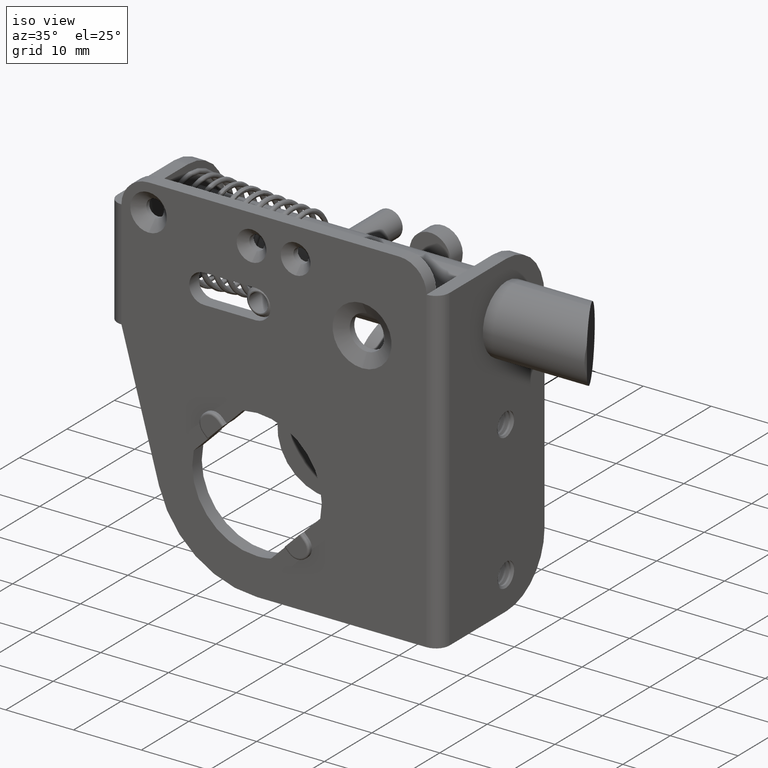
[diagram: clean part render]
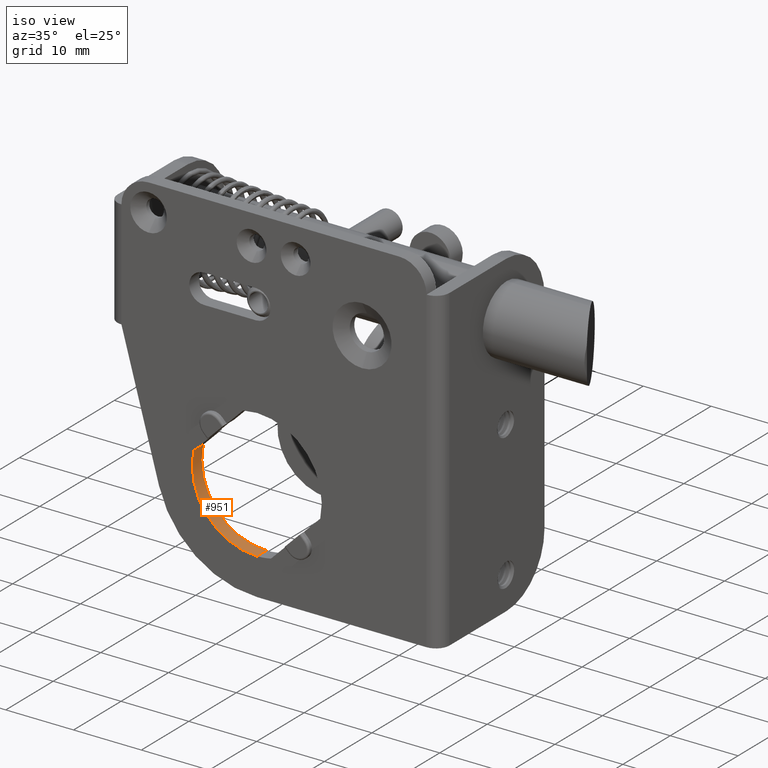
[diagram: same view with one face highlighted and labeled with its STEP entity id]
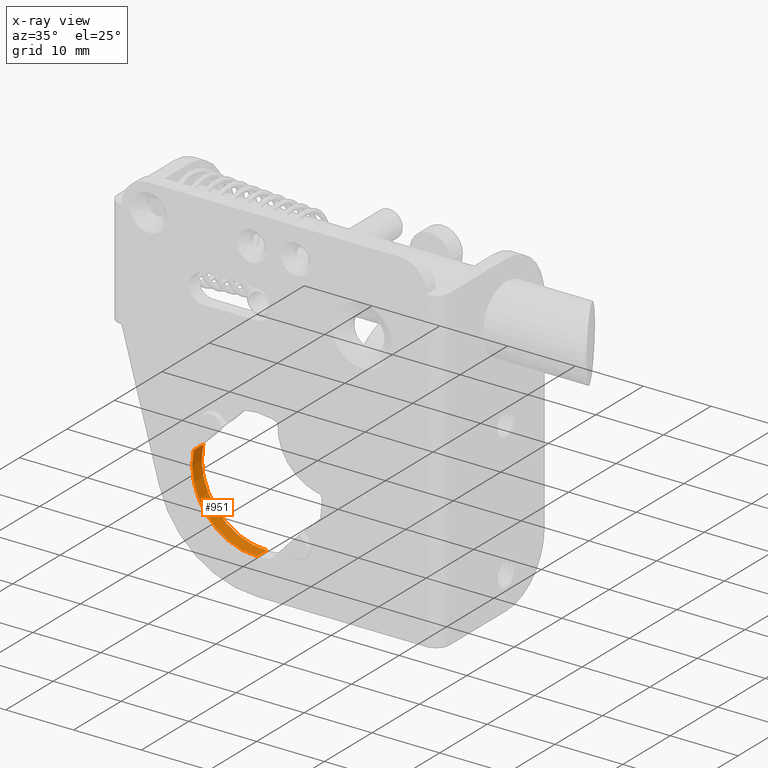
[diagram: x-ray of the same camera — body ghosted, the highlighted face saturated]
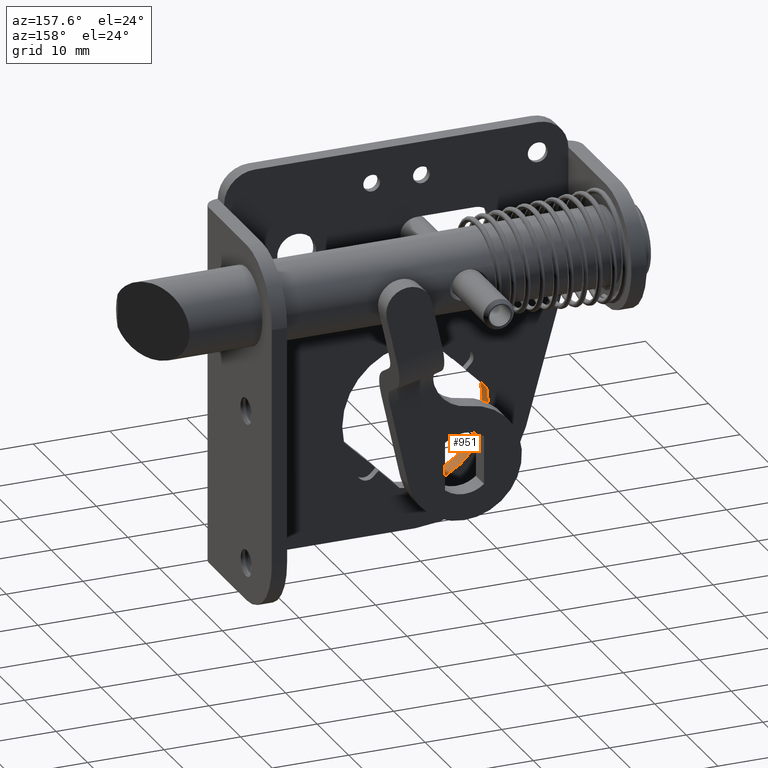
[diagram: same view with one face highlighted and labeled with its STEP entity id]
A machine part, iso view. The second image highlights one B-rep face of the part: STEP entity #951.
The next image is the same camera in x-ray: the body ghosted, the highlighted face saturated — about 0% of this face is hidden behind the body in this view.
A second angle (auxiliary view) of the same face is appended — the face is thin or edge-on in the first view.
In plain terms, the highlighted cylindrical surface (partial cylindrical patch) has radius 9.55 mm, axis along (-0, -1, 0).
Its self-contained STEP definition (entity closure, byte-faithful):
#280 = ORIENTED_EDGE ( 'NONE', *, *, #4961, .T. ) ;
#362 = VERTEX_POINT ( 'NONE', #3570 ) ;
#716 = CIRCLE ( 'NONE', #6069, 9.549999999999998900 ) ;
#870 = DIRECTION ( 'NONE',  ( -0.0000000000000000000, -1.000000000000000000, -0.0000000000000000000 ) ) ;
#951 = ADVANCED_FACE ( 'NONE', ( #13084 ), #9843, .F. ) ;
#1459 = CARTESIAN_POINT ( 'NONE',  ( -10.32460998623849900, 12.00000000000411900, -28.69097083647894700 ) ) ;
#1580 = CARTESIAN_POINT ( 'NONE',  ( -19.64999999971034900, -200986.0000000000000, -30.75000000009939800 ) ) ;
#2039 = VECTOR ( 'NONE', #8466, 1000.000000000000000 ) ;
#2533 = DIRECTION ( 'NONE',  ( -0.0000000000000000000, -1.000000000000000000, -0.0000000000000000000 ) ) ;
#2597 = CARTESIAN_POINT ( 'NONE',  ( -19.64999999971034900, 14.00000000001368000, -40.30000000009939500 ) ) ;
#3511 = VERTEX_POINT ( 'NONE', #1459 ) ;
#3570 = CARTESIAN_POINT ( 'NONE',  ( -10.32460998623849900, 14.00000000001368000, -28.69097083647890000 ) ) ;
#4056 = CARTESIAN_POINT ( 'NONE',  ( -19.64999999971034900, 12.00000000000411900, -40.30000000009939500 ) ) ;
#4525 = CIRCLE ( 'NONE', #8810, 9.549999999999998900 ) ;
#4961 = EDGE_CURVE ( 'NONE', #3511, #362, #5338, .T. ) ;
#5338 = LINE ( 'NONE', #13121, #8207 ) ;
#5657 = ORIENTED_EDGE ( 'NONE', *, *, #14288, .F. ) ;
#5678 = LINE ( 'NONE', #9693, #2039 ) ;
#6069 = AXIS2_PLACEMENT_3D ( 'NONE', #8212, #870, #9435 ) ;
#6205 = EDGE_CURVE ( 'NONE', #13746, #7428, #5678, .T. ) ;
#6499 = EDGE_CURVE ( 'NONE', #13746, #3511, #4525, .T. ) ;
#7428 = VERTEX_POINT ( 'NONE', #2597 ) ;
#7603 = ORIENTED_EDGE ( 'NONE', *, *, #6499, .T. ) ;
#8207 = VECTOR ( 'NONE', #14366, 1000.000000000000000 ) ;
#8212 = CARTESIAN_POINT ( 'NONE',  ( -19.64999999971034900, 14.00000000001368000, -30.75000000009939800 ) ) ;
#8466 = DIRECTION ( 'NONE',  ( 0.0000000000000000000, 1.000000000000000000, 0.0000000000000000000 ) ) ;
#8810 = AXIS2_PLACEMENT_3D ( 'NONE', #9860, #2533, #11102 ) ;
#9435 = DIRECTION ( 'NONE',  ( 0.0000000000000000000, 0.0000000000000000000, 1.000000000000000000 ) ) ;
#9693 = CARTESIAN_POINT ( 'NONE',  ( -19.64999999971034900, -200986.0000000000000, -40.30000000009939500 ) ) ;
#9843 = CYLINDRICAL_SURFACE ( 'NONE', #9933, 9.549999999999995400 ) ;
#9860 = CARTESIAN_POINT ( 'NONE',  ( -19.64999999971034900, 12.00000000000411900, -30.75000000009939800 ) ) ;
#9886 = ORIENTED_EDGE ( 'NONE', *, *, #6205, .F. ) ;
#9933 = AXIS2_PLACEMENT_3D ( 'NONE', #1580, #11380, #15033 ) ;
#10819 = EDGE_LOOP ( 'NONE', ( #9886, #7603, #280, #5657 ) ) ;
#11102 = DIRECTION ( 'NONE',  ( 0.0000000000000000000, 0.0000000000000000000, 1.000000000000000000 ) ) ;
#11380 = DIRECTION ( 'NONE',  ( 0.0000000000000000000, 1.000000000000000000, 0.0000000000000000000 ) ) ;
#13084 = FACE_OUTER_BOUND ( 'NONE', #10819, .T. ) ;
#13121 = CARTESIAN_POINT ( 'NONE',  ( -10.32460998623849900, -200986.0000000000000, -28.69097083647894700 ) ) ;
#13746 = VERTEX_POINT ( 'NONE', #4056 ) ;
#14288 = EDGE_CURVE ( 'NONE', #7428, #362, #716, .T. ) ;
#14366 = DIRECTION ( 'NONE',  ( 0.0000000000000000000, 1.000000000000000000, 0.0000000000000000000 ) ) ;
#15033 = DIRECTION ( 'NONE',  ( 0.0000000000000000000, 0.0000000000000000000, -1.000000000000000000 ) ) ;